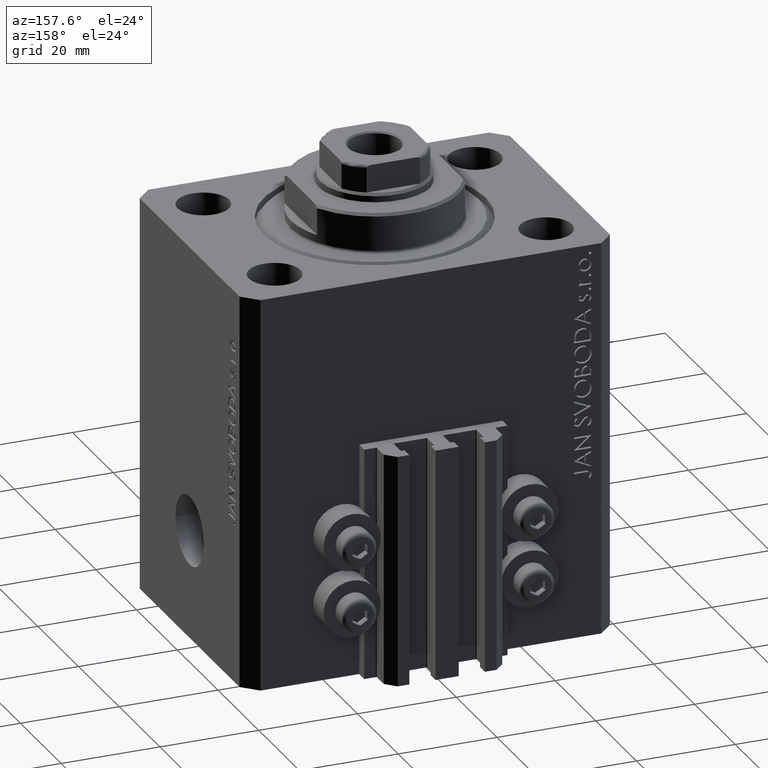
[diagram: clean part render]
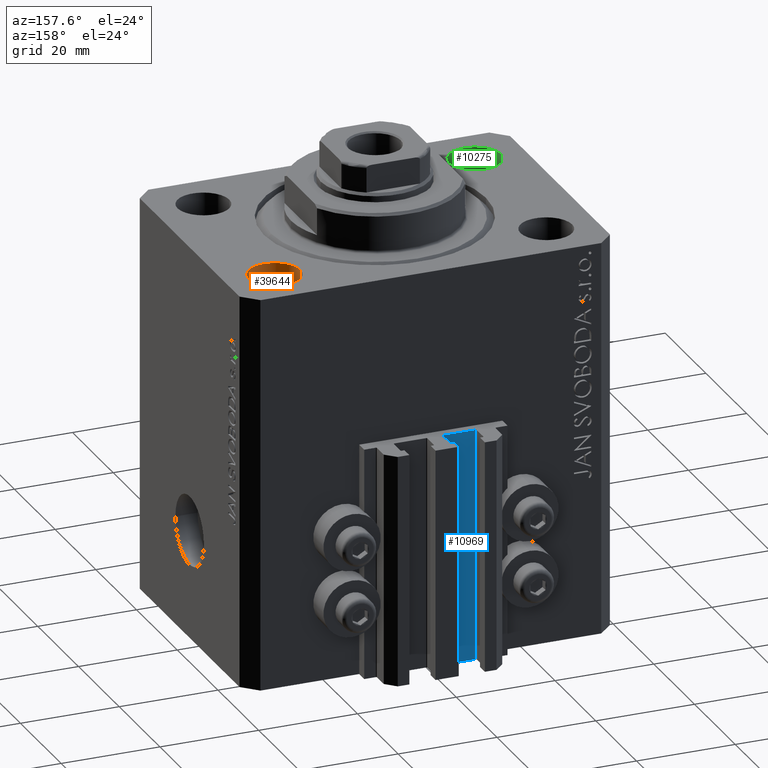
[diagram: same view with three faces highlighted in distinct colors, each labeled with its STEP entity id]
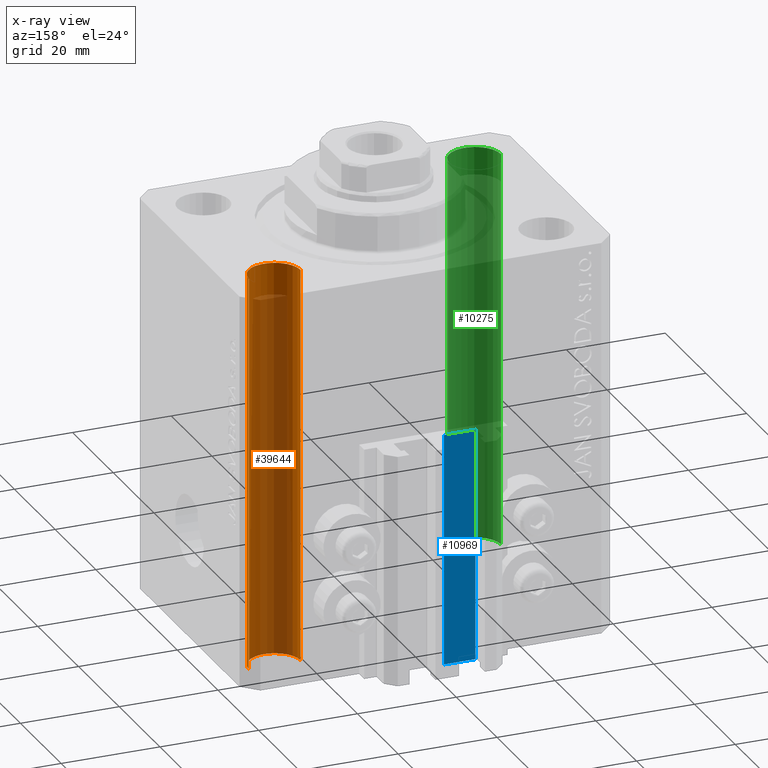
[diagram: x-ray of the same camera — body ghosted, the three highlighted faces saturated]
A machine part, auxiliary view with three faces highlighted in distinct colors.
The next image is the same camera in x-ray (body ghosted, the three faces saturated) — at least one of them is partly hidden behind the body in this view.
Their STEP definitions:

[orange] entity #39644 — the highlighted cylindrical surface (edge-blend (fillet) strip) has radius 5.25 mm, axis along (0, 0, 1).
#3 = AXIS2_PLACEMENT_3D ( 'NONE', #733, #41779, #33615 ) ;
#733 = CARTESIAN_POINT ( 'NONE',  ( 27.50000000000000000, 17.49999999999999289, -94.84924240491750425 ) ) ;
#2895 = CARTESIAN_POINT ( 'NONE',  ( 22.25000000000000000, 17.49999999999999289, 0.000000000000000000 ) ) ;
#3929 = ORIENTED_EDGE ( 'NONE', *, *, #21648, .T. ) ;
#4256 = CARTESIAN_POINT ( 'NONE',  ( 32.75000000000000000, 17.49999999999999289, -94.84924240491750425 ) ) ;
#4476 = ORIENTED_EDGE ( 'NONE', *, *, #5557, .T. ) ;
#5056 = FACE_OUTER_BOUND ( 'NONE', #29961, .T. ) ;
#5557 = EDGE_CURVE ( 'NONE', #21917, #24864, #41494, .T. ) ;
#10514 = LINE ( 'NONE', #4256, #31359 ) ;
#11559 = CIRCLE ( 'NONE', #36848, 5.250000000000000888 ) ;
#16726 = CARTESIAN_POINT ( 'NONE',  ( 22.25000000000000000, 17.49999999999999289, -94.84924240491750425 ) ) ;
#16962 = DIRECTION ( 'NONE',  ( -0.000000000000000000, -0.000000000000000000, -1.000000000000000000 ) ) ;
#17548 = AXIS2_PLACEMENT_3D ( 'NONE', #36256, #32402, #31708 ) ;
#20799 = CARTESIAN_POINT ( 'NONE',  ( 27.50000000000000000, 17.49999999999999289, -80.00000000000000000 ) ) ;
#20886 = CARTESIAN_POINT ( 'NONE',  ( 32.75000000000000000, 17.49999999999999289, -80.00000000000000000 ) ) ;
#21589 = CARTESIAN_POINT ( 'NONE',  ( 32.75000000000000000, 17.49999999999999289, 0.000000000000000000 ) ) ;
#21648 = EDGE_CURVE ( 'NONE', #24864, #27317, #39024, .T. ) ;
#21917 = VERTEX_POINT ( 'NONE', #23278 ) ;
#23278 = CARTESIAN_POINT ( 'NONE',  ( 22.25000000000000000, 17.49999999999999289, -80.00000000000000000 ) ) ;
#23942 = DIRECTION ( 'NONE',  ( -0.000000000000000000, -0.000000000000000000, 1.000000000000000000 ) ) ;
#24674 = VECTOR ( 'NONE', #23942, 1000.000000000000000 ) ;
#24864 = VERTEX_POINT ( 'NONE', #2895 ) ;
#25108 = EDGE_CURVE ( 'NONE', #42935, #27317, #10514, .T. ) ;
#27211 = ORIENTED_EDGE ( 'NONE', *, *, #25108, .F. ) ;
#27317 = VERTEX_POINT ( 'NONE', #21589 ) ;
#28019 = DIRECTION ( 'NONE',  ( 1.000000000000000000, 0.000000000000000000, 0.000000000000000000 ) ) ;
#29961 = EDGE_LOOP ( 'NONE', ( #40170, #4476, #3929, #27211 ) ) ;
#31359 = VECTOR ( 'NONE', #43883, 1000.000000000000000 ) ;
#31708 = DIRECTION ( 'NONE',  ( 1.000000000000000000, 0.000000000000000000, 0.000000000000000000 ) ) ;
#32402 = DIRECTION ( 'NONE',  ( 0.000000000000000000, 0.000000000000000000, 1.000000000000000000 ) ) ;
#33615 = DIRECTION ( 'NONE',  ( 1.000000000000000000, 0.000000000000000000, 0.000000000000000000 ) ) ;
#36256 = CARTESIAN_POINT ( 'NONE',  ( 27.50000000000000000, 17.49999999999999289, 0.000000000000000000 ) ) ;
#36848 = AXIS2_PLACEMENT_3D ( 'NONE', #20799, #16962, #28019 ) ;
#37474 = CYLINDRICAL_SURFACE ( 'NONE', #3, 5.250000000000000888 ) ;
#39024 = CIRCLE ( 'NONE', #17548, 5.250000000000000888 ) ;
#39644 = ADVANCED_FACE ( 'NONE', ( #5056 ), #37474, .F. ) ;
#40170 = ORIENTED_EDGE ( 'NONE', *, *, #40191, .T. ) ;
#40191 = EDGE_CURVE ( 'NONE', #42935, #21917, #11559, .T. ) ;
#41494 = LINE ( 'NONE', #16726, #24674 ) ;
#41779 = DIRECTION ( 'NONE',  ( -0.000000000000000000, -0.000000000000000000, 1.000000000000000000 ) ) ;
#42935 = VERTEX_POINT ( 'NONE', #20886 ) ;
#43883 = DIRECTION ( 'NONE',  ( -0.000000000000000000, -0.000000000000000000, 1.000000000000000000 ) ) ;

[blue] entity #10969 — the highlighted planar face has unit normal (0, 1, 0).
#428 = CARTESIAN_POINT ( 'NONE',  ( -1.800000000000000933, 29.50000000000000355, -33.00000000000000000 ) ) ;
#1389 = LINE ( 'NONE', #428, #8151 ) ;
#2044 = EDGE_CURVE ( 'NONE', #34738, #38299, #22761, .T. ) ;
#3326 = VERTEX_POINT ( 'NONE', #30577 ) ;
#3659 = CARTESIAN_POINT ( 'NONE',  ( -1.800000000000000933, 29.50000000000000355, -80.00000000000000000 ) ) ;
#4196 = CARTESIAN_POINT ( 'NONE',  ( -1.800000000000000933, 29.50000000000000355, -80.00000000000000000 ) ) ;
#5621 = ORIENTED_EDGE ( 'NONE', *, *, #2044, .F. ) ;
#6793 = DIRECTION ( 'NONE',  ( -1.000000000000000000, 0.000000000000000000, 0.000000000000000000 ) ) ;
#7741 = LINE ( 'NONE', #3659, #39668 ) ;
#8151 = VECTOR ( 'NONE', #26361, 1000.000000000000000 ) ;
#10285 = CARTESIAN_POINT ( 'NONE',  ( -8.199999999999997513, 29.50000000000000355, -33.00000000000000000 ) ) ;
#10969 = ADVANCED_FACE ( 'NONE', ( #45906 ), #17081, .T. ) ;
#12432 = DIRECTION ( 'NONE',  ( 0.000000000000000000, 0.000000000000000000, 1.000000000000000000 ) ) ;
#13484 = CARTESIAN_POINT ( 'NONE',  ( -1.800000000000000933, 29.50000000000000355, -80.00000000000000000 ) ) ;
#13866 = VECTOR ( 'NONE', #29445, 1000.000000000000000 ) ;
#13976 = EDGE_CURVE ( 'NONE', #38299, #25051, #1389, .T. ) ;
#15741 = CARTESIAN_POINT ( 'NONE',  ( -8.199999999999997513, 29.50000000000000355, -80.00000000000000000 ) ) ;
#16420 = CARTESIAN_POINT ( 'NONE',  ( -1.800000000000000933, 29.50000000000000355, -33.00000000000000000 ) ) ;
#17081 = PLANE ( 'NONE',  #17998 ) ;
#17998 = AXIS2_PLACEMENT_3D ( 'NONE', #13484, #38703, #28130 ) ;
#18382 = EDGE_CURVE ( 'NONE', #34738, #3326, #7741, .T. ) ;
#19406 = CARTESIAN_POINT ( 'NONE',  ( -1.800000000000000933, 29.50000000000000355, -80.00000000000000000 ) ) ;
#22761 = LINE ( 'NONE', #19406, #36551 ) ;
#25051 = VERTEX_POINT ( 'NONE', #10285 ) ;
#25589 = ORIENTED_EDGE ( 'NONE', *, *, #13976, .F. ) ;
#26361 = DIRECTION ( 'NONE',  ( -1.000000000000000000, 0.000000000000000000, 0.000000000000000000 ) ) ;
#28130 = DIRECTION ( 'NONE',  ( 0.000000000000000000, 0.000000000000000000, 1.000000000000000000 ) ) ;
#29445 = DIRECTION ( 'NONE',  ( 0.000000000000000000, 0.000000000000000000, 1.000000000000000000 ) ) ;
#30577 = CARTESIAN_POINT ( 'NONE',  ( -8.199999999999997513, 29.50000000000000355, -80.00000000000000000 ) ) ;
#34738 = VERTEX_POINT ( 'NONE', #4196 ) ;
#36551 = VECTOR ( 'NONE', #12432, 1000.000000000000000 ) ;
#37140 = LINE ( 'NONE', #15741, #13866 ) ;
#38299 = VERTEX_POINT ( 'NONE', #16420 ) ;
#38703 = DIRECTION ( 'NONE',  ( 0.000000000000000000, 1.000000000000000000, -0.000000000000000000 ) ) ;
#39100 = ORIENTED_EDGE ( 'NONE', *, *, #41406, .T. ) ;
#39668 = VECTOR ( 'NONE', #6793, 1000.000000000000000 ) ;
#41406 = EDGE_CURVE ( 'NONE', #3326, #25051, #37140, .T. ) ;
#41736 = ORIENTED_EDGE ( 'NONE', *, *, #18382, .T. ) ;
#45906 = FACE_OUTER_BOUND ( 'NONE', #47345, .T. ) ;
#47345 = EDGE_LOOP ( 'NONE', ( #25589, #5621, #41736, #39100 ) ) ;

[green] entity #10275 — the highlighted cylindrical surface (edge-blend (fillet) strip) has radius 5.25 mm, axis along (0, 0, 1).
#1337 = VECTOR ( 'NONE', #12045, 1000.000000000000000 ) ;
#1717 = DIRECTION ( 'NONE',  ( 1.000000000000000000, 0.000000000000000000, 0.000000000000000000 ) ) ;
#3426 = AXIS2_PLACEMENT_3D ( 'NONE', #5314, #16576, #1717 ) ;
#3572 = CARTESIAN_POINT ( 'NONE',  ( -32.74999999999999289, -17.50000000000000000, -80.00000000000000000 ) ) ;
#3704 = EDGE_CURVE ( 'NONE', #20411, #20989, #30283, .T. ) ;
#5314 = CARTESIAN_POINT ( 'NONE',  ( -27.49999999999999289, -17.50000000000000000, -80.00000000000000000 ) ) ;
#5316 = CARTESIAN_POINT ( 'NONE',  ( -27.49999999999999289, -17.50000000000000000, 0.000000000000000000 ) ) ;
#6822 = DIRECTION ( 'NONE',  ( 1.000000000000000000, 0.000000000000000000, 0.000000000000000000 ) ) ;
#8211 = DIRECTION ( 'NONE',  ( 1.000000000000000000, 0.000000000000000000, 0.000000000000000000 ) ) ;
#8417 = CARTESIAN_POINT ( 'NONE',  ( -32.74999999999999289, -17.50000000000000000, 0.000000000000000000 ) ) ;
#9730 = CARTESIAN_POINT ( 'NONE',  ( -27.49999999999999289, -17.50000000000000000, -94.84924240491750425 ) ) ;
#10275 = ADVANCED_FACE ( 'NONE', ( #14030 ), #39715, .F. ) ;
#12045 = DIRECTION ( 'NONE',  ( -0.000000000000000000, -0.000000000000000000, 1.000000000000000000 ) ) ;
#12369 = ORIENTED_EDGE ( 'NONE', *, *, #16341, .F. ) ;
#13360 = ORIENTED_EDGE ( 'NONE', *, *, #29333, .T. ) ;
#13650 = VERTEX_POINT ( 'NONE', #8417 ) ;
#14030 = FACE_OUTER_BOUND ( 'NONE', #18909, .T. ) ;
#14256 = DIRECTION ( 'NONE',  ( -0.000000000000000000, -0.000000000000000000, 1.000000000000000000 ) ) ;
#16341 = EDGE_CURVE ( 'NONE', #20411, #33308, #16808, .T. ) ;
#16576 = DIRECTION ( 'NONE',  ( -0.000000000000000000, -0.000000000000000000, -1.000000000000000000 ) ) ;
#16808 = LINE ( 'NONE', #19715, #1337 ) ;
#17684 = AXIS2_PLACEMENT_3D ( 'NONE', #5316, #34599, #8211 ) ;
#18909 = EDGE_LOOP ( 'NONE', ( #33734, #13360, #40344, #12369 ) ) ;
#19715 = CARTESIAN_POINT ( 'NONE',  ( -22.24999999999999289, -17.50000000000000000, -94.84924240491750425 ) ) ;
#20411 = VERTEX_POINT ( 'NONE', #38021 ) ;
#20989 = VERTEX_POINT ( 'NONE', #3572 ) ;
#26125 = VECTOR ( 'NONE', #27408, 1000.000000000000000 ) ;
#26700 = CARTESIAN_POINT ( 'NONE',  ( -32.74999999999999289, -17.50000000000000000, -94.84924240491750425 ) ) ;
#27408 = DIRECTION ( 'NONE',  ( -0.000000000000000000, -0.000000000000000000, 1.000000000000000000 ) ) ;
#28432 = EDGE_CURVE ( 'NONE', #13650, #33308, #31468, .T. ) ;
#29333 = EDGE_CURVE ( 'NONE', #20989, #13650, #31006, .T. ) ;
#30283 = CIRCLE ( 'NONE', #3426, 5.250000000000000888 ) ;
#31006 = LINE ( 'NONE', #26700, #26125 ) ;
#31399 = CARTESIAN_POINT ( 'NONE',  ( -22.24999999999999289, -17.50000000000000000, 0.000000000000000000 ) ) ;
#31468 = CIRCLE ( 'NONE', #17684, 5.250000000000000888 ) ;
#33308 = VERTEX_POINT ( 'NONE', #31399 ) ;
#33734 = ORIENTED_EDGE ( 'NONE', *, *, #3704, .T. ) ;
#34599 = DIRECTION ( 'NONE',  ( 0.000000000000000000, 0.000000000000000000, 1.000000000000000000 ) ) ;
#38021 = CARTESIAN_POINT ( 'NONE',  ( -22.24999999999999289, -17.50000000000000000, -80.00000000000000000 ) ) ;
#39715 = CYLINDRICAL_SURFACE ( 'NONE', #44864, 5.250000000000000888 ) ;
#40344 = ORIENTED_EDGE ( 'NONE', *, *, #28432, .T. ) ;
#44864 = AXIS2_PLACEMENT_3D ( 'NONE', #9730, #14256, #6822 ) ;